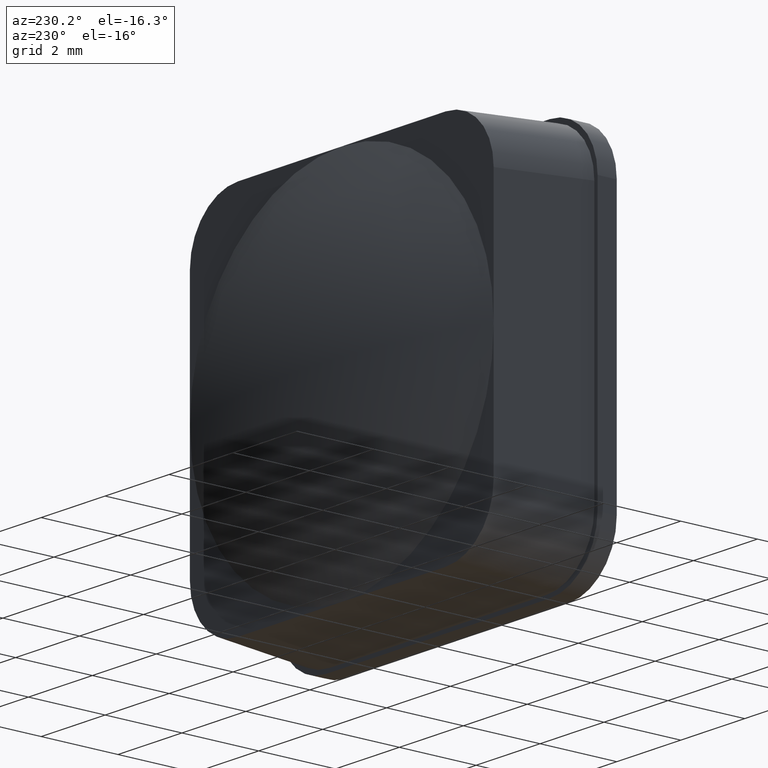
[diagram: clean part render]
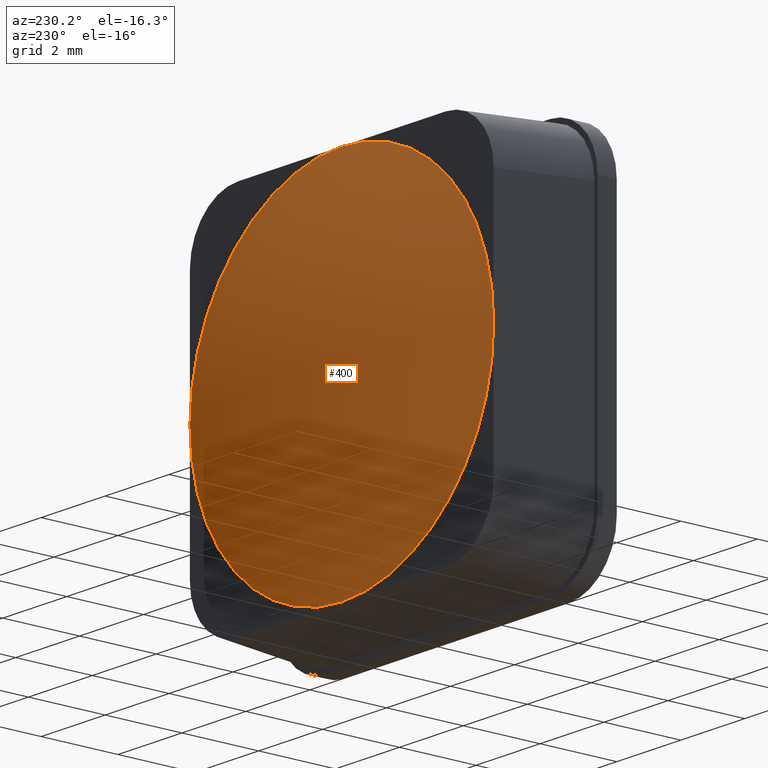
[diagram: same view with one face highlighted and labeled with its STEP entity id]
A machine part, auxiliary view. The second image highlights one B-rep face of the part: STEP entity #400.
In plain terms, the highlighted spherical surface has radius 14.5016 mm.
Its self-contained STEP definition (entity closure, byte-faithful):
#16=SPHERICAL_SURFACE('',#445,14.5015625);
#57=FACE_OUTER_BOUND('',#80,.T.);
#80=EDGE_LOOP('',(#341,#342,#343,#344));
#163=CIRCLE('',#420,4.75000000000002);
#165=CIRCLE('',#428,4.75000000000002);
#167=CIRCLE('',#436,4.75000000000002);
#169=CIRCLE('',#444,4.75000000000002);
#185=VERTEX_POINT('',#612);
#188=VERTEX_POINT('',#620);
#192=VERTEX_POINT('',#634);
#202=VERTEX_POINT('',#663);
#228=EDGE_CURVE('',#188,#185,#163,.T.);
#238=EDGE_CURVE('',#185,#192,#165,.T.);
#249=EDGE_CURVE('',#202,#188,#167,.T.);
#258=EDGE_CURVE('',#192,#202,#169,.T.);
#341=ORIENTED_EDGE('',*,*,#249,.F.);
#342=ORIENTED_EDGE('',*,*,#258,.F.);
#343=ORIENTED_EDGE('',*,*,#238,.F.);
#344=ORIENTED_EDGE('',*,*,#228,.F.);
#400=ADVANCED_FACE('',(#57),#16,.T.);
#420=AXIS2_PLACEMENT_3D('',#622,#493,#494);
#428=AXIS2_PLACEMENT_3D('',#642,#515,#516);
#436=AXIS2_PLACEMENT_3D('',#665,#538,#539);
#444=AXIS2_PLACEMENT_3D('',#681,#559,#560);
#445=AXIS2_PLACEMENT_3D('',#682,#561,#562);
#493=DIRECTION('center_axis',(0.,-1.,0.));
#494=DIRECTION('ref_axis',(0.,0.,-1.));
#515=DIRECTION('center_axis',(0.,-1.,0.));
#516=DIRECTION('ref_axis',(0.,0.,-1.));
#538=DIRECTION('center_axis',(0.,-1.,0.));
#539=DIRECTION('ref_axis',(0.,0.,-1.));
#559=DIRECTION('center_axis',(0.,-1.,0.));
#560=DIRECTION('ref_axis',(0.,0.,-1.));
#561=DIRECTION('center_axis',(6.12323399573677E-17,0.,1.));
#562=DIRECTION('ref_axis',(1.,0.,0.));
#612=CARTESIAN_POINT('',(4.5682297313471E-16,2.5,-4.75));
#620=CARTESIAN_POINT('',(-4.75,2.5,0.));
#622=CARTESIAN_POINT('Origin',(-9.82885391778683E-17,2.5,0.));
#634=CARTESIAN_POINT('',(4.75,2.5,-5.55111512312578E-16));
#642=CARTESIAN_POINT('Origin',(-9.82885391778683E-17,2.5,0.));
#663=CARTESIAN_POINT('',(-6.53400051490447E-16,2.5,4.75));
#665=CARTESIAN_POINT('Origin',(-9.82885391778683E-17,2.5,0.));
#681=CARTESIAN_POINT('Origin',(-9.82885391778683E-17,2.5,0.));
#682=CARTESIAN_POINT('Origin',(-9.82885391778683E-17,-11.2015625,0.));